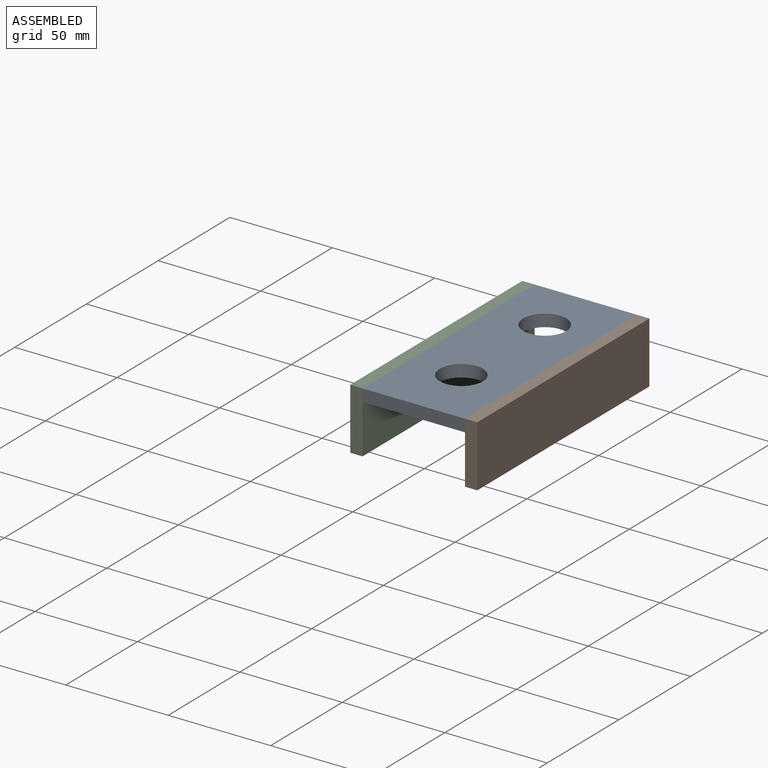
[diagram: assembled view]
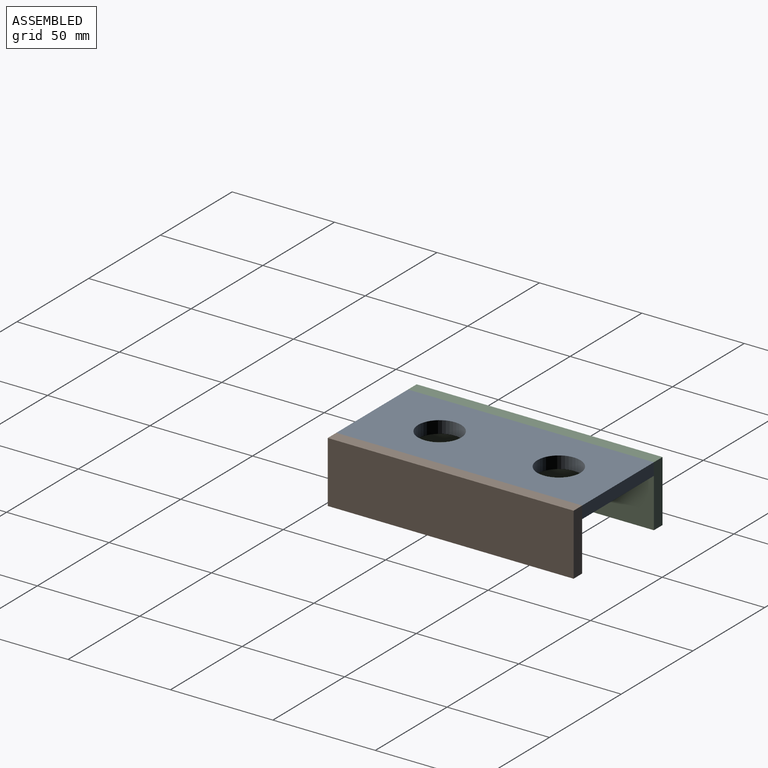
[diagram: assembled view, second angle]
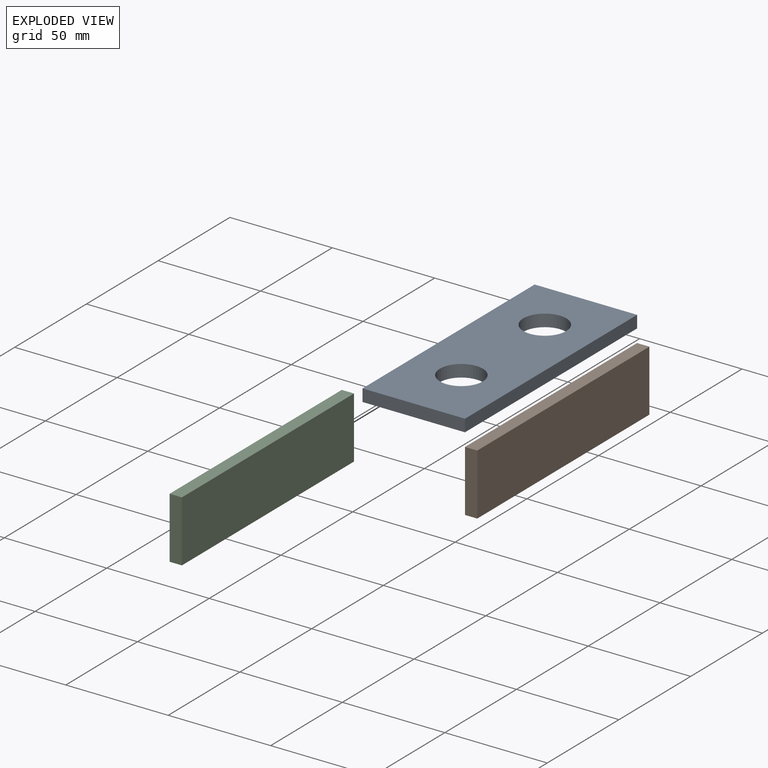
[diagram: exploded view]
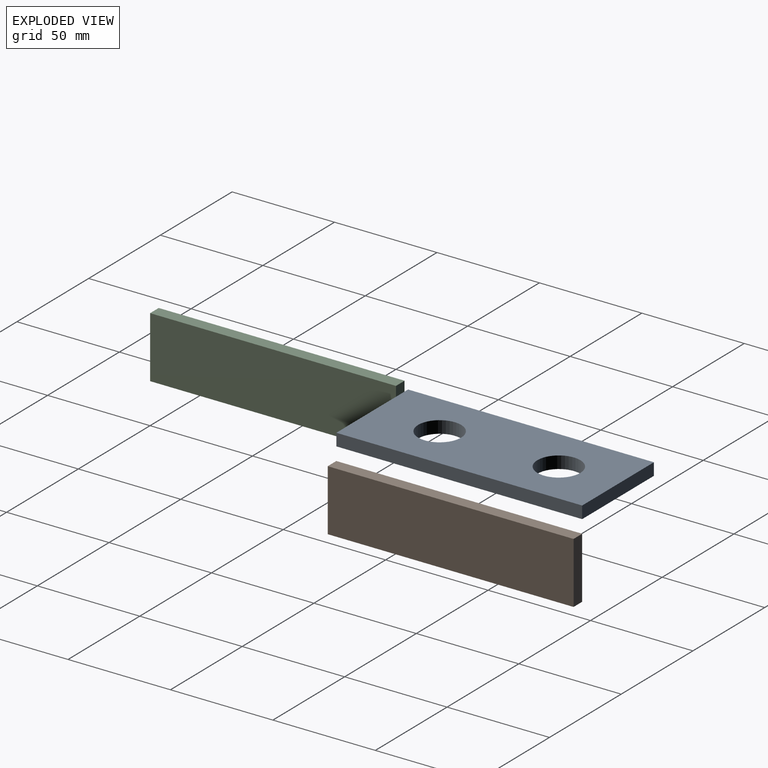
[diagram: exploded view, second angle]
ASSEMBLY  parts=3 mates=2
PART A: 8 faces, bbox 120x50x6 mm
  f0: plane 50x6mm, normal (-1,0,0), area 300mm2, adj f1,f4,f6,f7
  f1: plane 120x6mm, normal (0,-1,0), area 720mm2, adj f0,f2,f6,f7
  f2: plane 50x6mm, normal (1,0,0), area 300mm2, adj f1,f4,f6,f7
  f3: cylinder r=10.5mm len=21mm, axis (0,0,-1), area 395.8mm2, adj f6,f7
  f4: plane 120x6mm, normal (0,1,0), area 720mm2, adj f0,f2,f6,f7
  f5: cylinder r=10.5mm len=21mm, axis (0,0,-1), area 395.8mm2, adj f6,f7
  f6: plane 120x50mm, normal (0,0,1), area 5307.3mm2, adj f0,f1,f2,f3,f4,f5
  f7: plane 120x50mm, normal (0,0,-1), area 5307.3mm2, adj f0,f1,f2,f3,f4,f5
PART B: 6 faces, bbox 120x6x30 mm
  f0: plane 120x6mm, normal (0,0,1), area 720mm2, adj f1,f3,f4,f5
  f1: plane 30x6mm, normal (-1,0,0), area 180mm2, adj f0,f2,f4,f5
  f2: plane 120x6mm, normal (0,0,-1), area 720mm2, adj f1,f3,f4,f5
  f3: plane 30x6mm, normal (1,0,0), area 180mm2, adj f0,f2,f4,f5
  f4: plane 120x30mm, normal (0,-1,0), area 3600mm2, adj f0,f1,f2,f3
  f5: plane 120x30mm, normal (0,1,0), area 3600mm2, adj f0,f1,f2,f3
PART C: same geometry as B
PLACE A rot(axis=(-0.71,0.71,0),180deg) t=(-40.93,92.58,-105.73)mm
PLACE B rot(axis=(0,0,1),90deg) t=(-8.96,23.8,-174.52)mm
PLACE C rot(axis=(0,0,-1),90deg) t=(-58.96,135.55,-174.52)mm
MATE fastened C.f3 <-> A.f2  axis (0,-1,0) through (-58.96,19.68,-105.73)mm
MATE fastened B.f0 <-> A.f7  axis (0,0,1) through (-8.96,19.68,-105.73)mm
